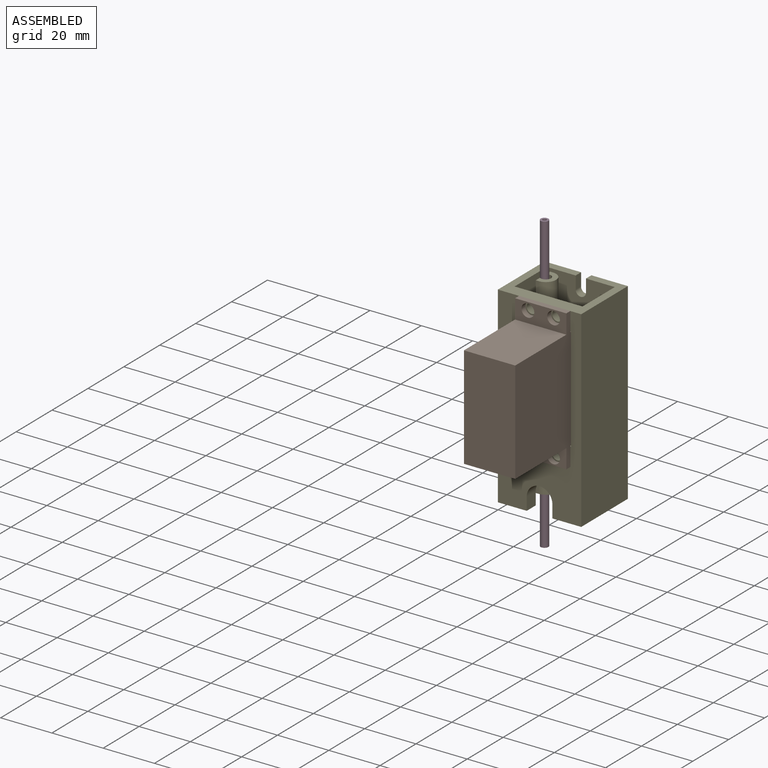
[diagram: assembled view]
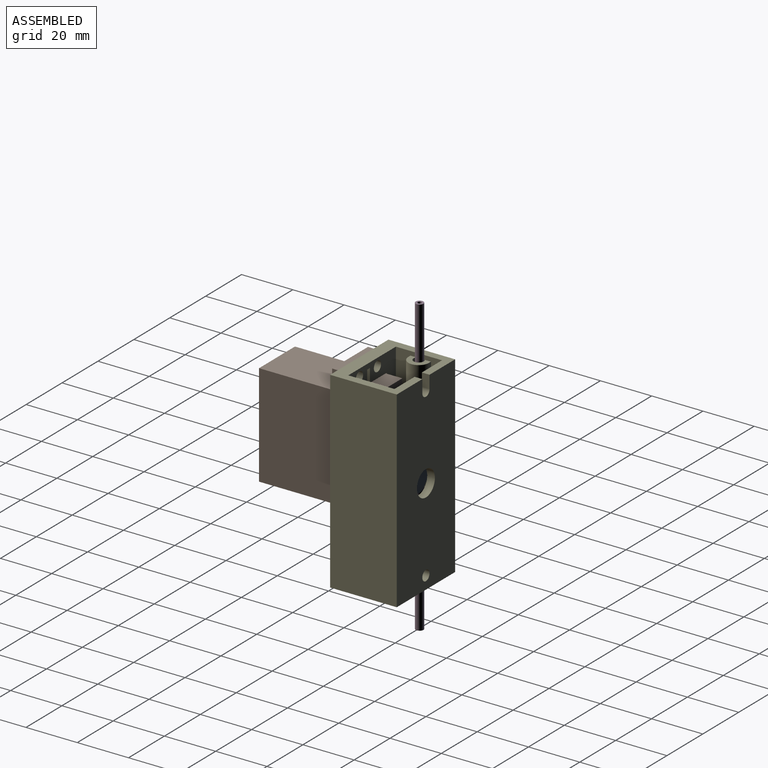
[diagram: assembled view, second angle]
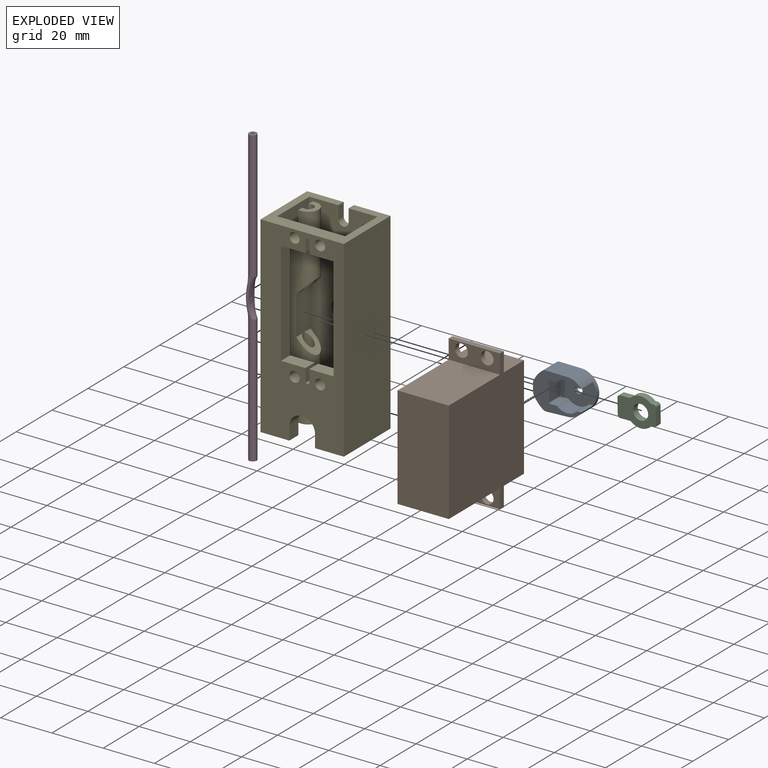
[diagram: exploded view]
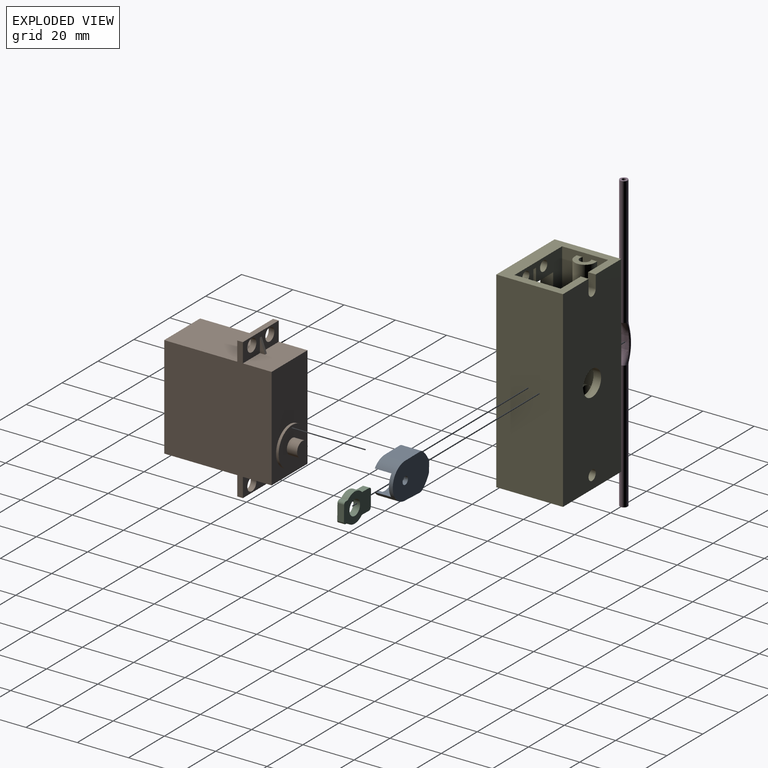
[diagram: exploded view, second angle]
FCSTD DOCUMENT  (FreeCAD 1.1R20260414 (Git shallow))
Label: ValveAssembly
Comment: Source: ServoQuetsch https://gitlab.com/mikeventor1/ServoQuetsch (CERN-OHL-P-2.0). Multi-file bundle: parts driven by VarSet in V.FCStd.
License: CERN Open Hardware Licence Version 2 - Permissive
LicenseURL: https://ohwr.org/cernohl
objects: App::Link×5, App::FeaturePython×5, TechDraw::DrawViewAnnotation×3, TechDraw::DrawProjGroupItem×3, TechDraw::DrawViewDimension×3, TechDraw::DrawViewBalloon×3, App::Point×1, Assembly::JointGroup×1, Assembly::AssemblyObject×1, TechDraw::DrawSVGTemplate×1, TechDraw::DrawProjGroup×1, TechDraw::DrawPage×1
note: 6 computed .brp shape members not serialized (recipe doc carries the construction recipe); baked Part::Feature solids carry a one-line shape summary decoded from their .brp
EXTERNAL_REF file=ValveBody.FCStd obj=Body
EXTERNAL_REF file=Servo.FCStd obj=Body
EXTERNAL_REF file=ServoConnector.FCStd obj=Body
EXTERNAL_REF file=Pincher.FCStd obj=Body
EXTERNAL_REF file=V.FCStd obj=VarSet
EXTERNAL_REF file=Tube.FCStd obj=Body

FEATURE [App::Point] Origin001  label="Ursprung"
  Role = Origin
FEATURE [App::Link] ValveBody
  LinkedObject = -> <external ValveBody.FCStd>#Body
FEATURE [App::FeaturePython] GroundedJoint  # Assembly grounded joint (typed FeaturePython)
  ObjectToGround = -> ValveBody
FEATURE [App::Link] Servo
  LinkPlacement = pos=(2,-44.7,47.5) rot=(1,0,0;4.71239rad)
  LinkedObject = -> <external Servo.FCStd>#Body
  Placement = pos=(2,-44.7,47.5) rot=(1,0,0;4.71239rad)
FEATURE [App::Link] ServoConnector
  LinkPlacement = pos=(2,1.6,37.735) rot=(0.584822,-0.573578,-0.573578;4.19996rad)
  LinkedObject = -> <external ServoConnector.FCStd>#Body
  Placement = pos=(2,1.6,37.735) rot=(0.584822,-0.573578,-0.573578;4.19996rad)
FEATURE [App::Link] Pincher001
  LinkPlacement = pos=(-10.7476,5.7,37.4875) rot=(-0.999906,0.009706,-0.009706;4.7123rad)
  LinkedObject = -> <external Pincher.FCStd>#Body
  Placement = pos=(-10.7476,5.7,37.4875) rot=(-0.999906,0.009706,-0.009706;4.7123rad)
FEATURE [App::FeaturePython] Joint001  label="Drehverbindung004"  # Assembly joint (typed FeaturePython)
  Angle = 0
  AngleMax = 0
  AngleMin = 0
  Detach1 = false
  Detach2 = false
  Distance = 0
  Distance2 = 0
  EnableAngleMax = false
  EnableAngleMin = false
  EnableLengthMax = false
  EnableLengthMin = false
  JointType = 1 (Revolute)
  LengthMax = 0
  LengthMin = 0
  Offset2 = pos=(0,0,2) rot=(0,0,1;0rad)
  Placement1 = pos=(0,7.1e-15,2.6) rot=(-1,0,0;3.14159rad)
  Placement2 = pos=(0,9.765,48.9) rot=(0,0,1;0rad)
  Reference1 = -> ServoConnector [Edge23,Edge23]
  Reference2 = -> Servo [Edge76,Edge76]
  Suppressed = false
FEATURE [App::FeaturePython] Joint002  label="StarrerVerbund004"  # Assembly joint (typed FeaturePython)
  Angle = 0
  AngleMax = 0
  AngleMin = 0
  Detach1 = false
  Detach2 = false
  Distance = 0
  Distance2 = 0
  EnableAngleMax = false
  EnableAngleMin = false
  EnableLengthMax = false
  EnableLengthMin = false
  JointType = 0 (Fixed)
  LengthMax = 0
  LengthMin = 0
  Offset2 = pos=(0,0,0) rot=(0,0,1;1.5708rad)
  Placement1 = pos=(12.75,0,1.5) rot=(-1,0,0;3.14159rad)
  Placement2 = pos=(0,7.1e-15,2.6) rot=(-0.707107,0.707107,0;3.14159rad)
  Reference1 = -> Pincher001 [Edge52,Edge52]
  Reference2 = -> ServoConnector [Edge39,Edge39]
  Suppressed = false
FEATURE [App::FeaturePython] Joint  label="StarrerVerbund008"  # Assembly joint (typed FeaturePython)
  Angle = 0
  AngleMax = 0
  AngleMin = 0
  Detach1 = false
  Detach2 = false
  Distance = 0
  Distance2 = 0
  EnableAngleMax = false
  EnableAngleMin = false
  EnableLengthMax = false
  EnableLengthMin = false
  JointType = 0 (Fixed)
  LengthMax = 0
  LengthMin = 0
  Offset2 = pos=(0.25,0,0) rot=(0,0,-1;1.5708rad)
  Placement1 = pos=(-10,0,30.7) rot=(-0.57735,-0.57735,0.57735;4.18879rad)
  Placement2 = pos=(-8,-14,47.5) rot=(0,0,-1;1.5708rad)
  Reference1 = -> Servo [Edge22,Edge22]
  Reference2 = -> ValveBody [Edge6,Edge6]
  Suppressed = false
  expr: .Offset2.Base.x = <<V>>#<<VarSet>>.ServoClearance / 2
FEATURE [App::Link] Tube
  LinkPlacement = pos=(-9.75,2.7,37.5) rot=(0,0.707107,0.707107;3.14159rad)
  LinkedObject = -> <external Tube.FCStd>#Body
  Placement = pos=(-9.75,2.7,37.5) rot=(0,0.707107,0.707107;3.14159rad)
FEATURE [App::FeaturePython] Joint003  label="Fixed004"  # Assembly joint (typed FeaturePython)
  Angle = 0
  AngleMax = 0
  AngleMin = 0
  Detach1 = false
  Detach2 = false
  Distance = 0
  Distance2 = 0
  EnableAngleMax = false
  EnableAngleMin = false
  EnableLengthMax = false
  EnableLengthMin = false
  JointType = 0 (Fixed)
  LengthMax = 0
  LengthMin = 0
  Offset1 = pos=(1.5,0,0) rot=(0,0,1;0rad)
  Offset2 = pos=(0,0,0) rot=(0,0,1;3.14159rad)
  Placement1 = pos=(1.5,7.5,-4.9e-15) rot=(1,0,0;1.5708rad)
  Placement2 = pos=(-11.25,2.7,45) rot=(0,0,1;3.14159rad)
  Reference1 = -> Tube [Edge20,Edge20]
  Reference2 = -> ValveBody [Edge205,Vertex139]
  Suppressed = false
  expr: .Offset1.Base.x = <<V>>#<<VarSet>>.TubeOD / 2
FEATURE [Assembly::JointGroup] Joints
  Group = -> [GroundedJoint,Joint001,Joint002,Joint,Joint003]
FEATURE [Assembly::AssemblyObject] Assembly
  Group = -> [Joints,ValveBody,GroundedJoint,Servo,ServoConnector,Pincher001,Joint001,Joint002,Joint,Tube,Joint003]
  Origin = -> Origin
  Type = Assembly
FEATURE [TechDraw::DrawSVGTemplate] Template
  EditableTexts = approval_person=Mike; creator=Mike; date_of_issue=10.06.26; drawing_number=DN; language_code=EN; part_material=PETG; revision_index=AAA; scale=1 : 1; sheet_number=1 / 1; title=ValveAssembly
  Height = 210
  Orientation = 1
  Template = <path>
  Width = 297
FEATURE [TechDraw::DrawViewAnnotation] Annotation
  Font = osifont
  LineSpace = 100
  LockPosition = false
  MaxWidth = -1
  Rotation = 0
  ScaleType = 0
  Text = BOM: | 1 Servo 25 Kg DC4.8~7V  |     e.g. TD-8125MG     ~12€ | 2 ValveBody | 3 Pincher
  TextSize = 5
  TextStyle = 0
  X = 236.287
  Y = 88.5631
FEATURE [TechDraw::DrawViewAnnotation] Annotation002
  Font = osifont
  LineSpace = 100
  LockPosition = false
  MaxWidth = -1
  Rotation = 0
  ScaleType = 0
  Text = ~1€
  TextSize = 5
  TextStyle = 0
  X = 254.1
  Y = 72.8304
FEATURE [TechDraw::DrawProjGroupItem] View  label="Front"
  CoarseView = false
  Direction = (0,-1,0)
  Focus = 100
  HardHidden = true
  IsoCount = 0
  IsoHidden = false
  IsoVisible = false
  LockPosition = true
  Perspective = false
  Rotation = 0
  RotationVector = (1,0,0)
  ScaleType = 2
  ScrubCount = 0
  SeamHidden = false
  SeamVisible = true
  SmoothHidden = false
  SmoothVisible = true
  Source = -> [Assembly]
  Type = 0
  X = 0
  XDirection = (1e-16,0,1)
  Y = 0
FEATURE [TechDraw::DrawProjGroupItem] ProjItem  label="Right"
  CoarseView = false
  Direction = (1e-16,-1e-16,1)
  Focus = 100
  HardHidden = true
  IsoCount = 0
  IsoHidden = false
  IsoVisible = false
  LockPosition = true
  Perspective = false
  Rotation = 0
  RotationVector = (1,0,0)
  ScaleType = 0
  ScrubCount = 0
  SeamHidden = false
  SeamVisible = true
  SmoothHidden = false
  SmoothVisible = true
  Source = -> [Assembly]
  Type = 2
  X = -121.088
  XDirection = (0,1,1e-16)
  Y = 0
FEATURE [TechDraw::DrawProjGroup] ProjGroup
  Anchor = -> View
  AutoDistribute = true
  LockPosition = false
  ProjectionType = 0
  Rotation = 0
  ScaleType = 0
  Source = -> [Assembly]
  Views = -> [View,ProjItem]
  X = 201.697
  Y = 148.763
  spacingX = 15
  spacingY = 15
FEATURE [TechDraw::DrawProjGroupItem] View001
  CoarseView = false
  Direction = (0.131616,-0.129876,-0.982756)
  Focus = 100
  HardHidden = false
  IsoCount = 0
  IsoHidden = false
  IsoVisible = false
  LockPosition = false
  Perspective = false
  Rotation = 0
  RotationVector = (1,0,0)
  ScaleType = 0
  ScrubCount = 0
  SeamHidden = false
  SeamVisible = true
  SmoothHidden = false
  SmoothVisible = true
  Source = -> [Assembly]
  Type = 0
  X = 67.2636
  XDirection = (0.957469,-0.240133,0.159964)
  Y = 60.1996
FEATURE [TechDraw::DrawViewAnnotation] Annotation001
  Font = osifont
  LineSpace = 100
  LockPosition = false
  MaxWidth = -1
  Owner = -> Annotation
  Rotation = 0
  ScaleType = 0
  Text = }
  TextSize = 15
  TextStyle = 0
  X = 4.17223
  Y = -15.358
FEATURE [TechDraw::DrawViewDimension] Dimension
  AngleOverride = false
  Arbitrary = true
  ArbitraryTolerances = false
  BoxCorners = (2) [(-57.5,-16.25,-1e-07),(57.5,16.25,1e-07)]
  EqualTolerance = true
  ExtensionAngle = 0
  FormatSpec = 75 mm
  FormatSpecOverTolerance = %+.2w
  FormatSpecUnderTolerance = %+.2w
  Inverted = false
  LineAngle = 0
  LockPosition = false
  MeasureType = 1
  OverTolerance = 0
  References2D = -> [View]
  Rotation = 0
  ScaleType = 0
  ShowUnits = false
  TheoreticalExact = false
  Type = 1
  UnderTolerance = 0
  UseActualArea = true
  X = 0
  Y = 29.791
FEATURE [TechDraw::DrawViewDimension] Dimension001
  AngleOverride = false
  Arbitrary = true
  ArbitraryTolerances = false
  BoxCorners = (2) [(-28.35,-16.25,-1e-07),(28.35,16.25,1e-07)]
  EqualTolerance = true
  ExtensionAngle = 0
  FormatSpec = 56.7 mm
  FormatSpecOverTolerance = %+.2w
  FormatSpecUnderTolerance = %+.2w
  Inverted = false
  LineAngle = 0
  LockPosition = false
  MeasureType = 1
  OverTolerance = 0
  References2D = -> [ProjItem]
  Rotation = 0
  ScaleType = 0
  ShowUnits = false
  TheoreticalExact = false
  Type = 1
  UnderTolerance = 0
  UseActualArea = true
  X = 0
  Y = 29.0805
FEATURE [TechDraw::DrawViewDimension] Dimension002
  AngleOverride = false
  Arbitrary = true
  ArbitraryTolerances = false
  BoxCorners = (2) [(-28.35,-16.25,-1e-07),(28.35,16.25,1e-07)]
  EqualTolerance = true
  ExtensionAngle = 0
  FormatSpec = 32.5 mm
  FormatSpecOverTolerance = %+.2w
  FormatSpecUnderTolerance = %+.2w
  Inverted = false
  LineAngle = 0
  LockPosition = false
  MeasureType = 1
  OverTolerance = 0
  References2D = -> [ProjItem]
  Rotation = 0
  ScaleType = 0
  ShowUnits = false
  TheoreticalExact = false
  Type = 2
  UnderTolerance = 0
  UseActualArea = true
  X = 40.2236
  Y = 0
FEATURE [TechDraw::DrawViewBalloon] Balloon
  BubbleShape = 0
  EndType = 0
  EndTypeScale = 1
  KinkLength = 5
  LockPosition = false
  OriginX = -14.1
  OriginY = -12
  Rotation = 0
  ScaleType = 0
  ShapeScale = 1
  SourceView = -> ProjItem
  Text = 1
  TextWrapLen = -1
  X = -8.49766
  Y = -39.1975
FEATURE [TechDraw::DrawViewBalloon] Balloon001
  BubbleShape = 0
  EndType = 0
  EndTypeScale = 1
  KinkLength = 5
  LockPosition = false
  OriginX = 12.5426
  OriginY = -16.0642
  Rotation = 0
  ScaleType = 0
  ShapeScale = 1
  SourceView = -> Balloon
  Text = 2
  TextWrapLen = -1
  X = 19.9598
  Y = -39.1027
FEATURE [TechDraw::DrawViewBalloon] Balloon002
  BubbleShape = 0
  EndType = 0
  EndTypeScale = 1
  KinkLength = 5
  LockPosition = false
  OriginX = 22.05
  OriginY = 5.12366
  Rotation = 0
  ScaleType = 0
  ShapeScale = 1
  SourceView = -> ProjItem
  Text = 3
  TextWrapLen = -1
  X = 48.8291
  Y = -39.1363
FEATURE [TechDraw::DrawPage] Page
  KeepUpdated = true
  NextBalloonIndex = 7
  ProjectionType = 0
  Template = -> Template
  Views = -> [Annotation,Annotation001,Annotation002,ProjGroup,View001,Dimension,Dimension001,Dimension002,Balloon,Balloon001,Balloon002]
note: 1 file-system path scrubbed to <path> (originals preserved in the JSON sidecar)

RESOLVED EXTERNAL PARTS (link-assembly join: the EXTERNAL_REF files above that resolve inside this repo's crawl, each included once):
---- part Pincher.FCStd = doc fcstd_8b7159f7c5c5 ----
FCSTD DOCUMENT  (FreeCAD 1.1R20260414 (Git shallow))
Label: Pincher
Comment: Source: ServoQuetsch https://gitlab.com/mikeventor1/ServoQuetsch (CERN-OHL-P-2.0). Multi-file bundle: parts driven by VarSet in V.FCStd.
License: CERN Open Hardware Licence Version 2 - Permissive
LicenseURL: https://ohwr.org/cernohl
objects: Sketcher::SketchObject×3, PartDesign::Mirrored×2, PartDesign::Pocket×2, App::Point×1, PartDesign::Pad×1, PartDesign::Fillet×1, PartDesign::Body×1
note: 23 computed .brp shape members not serialized (recipe doc carries the construction recipe); baked Part::Feature solids carry a one-line shape summary decoded from their .brp
EXTERNAL_REF file=V.FCStd obj=VarSet

FEATURE [App::Point] Origin001  label="Ursprung"
  Role = Origin
FEATURE [Sketcher::SketchObject] Sketch004  label="Pincher"
  ArcFitTolerance = 1e-06
  AttachmentSupport = -> [Origin]
  ExternalTypes = [0,0]
  FullyConstrained = true
  MakeInternals = false
  MapMode = 5
  _ExternalGeoVersion = 1
  expr: .Constraints.PinchStartAngle = <<V>>#<<VarSet>>.PinchStartAngle
  expr: Constraints[3] = <<V>>#<<VarSet>>.PinchEndL
  expr: Constraints[4] = <<V>>#<<VarSet>>.PinchStartL
  expr: Constraints[6] = <<V>>#<<VarSet>>.PinchStartAngle / 2
  expr: Constraints[7] = (<<V>>#<<VarSet>>.PinchEndL + <<V>>#<<VarSet>>.PinchStartL) / 2
  sketch-geometry (16):
    g0: GeomPoint X=13.25 Y=-2 Z=0
    g1: LineSegment [constr] StartX=13.25 StartY=-2 StartZ=0 EndX=0 EndY=-2 EndZ=0
    g2: LineSegment [constr] StartX=13.25 StartY=-2 StartZ=0 EndX=4.37324 EndY=-7.125 EndZ=0
    g3: LineSegment [constr] StartX=13.25 StartY=-2 StartZ=0 EndX=1.90037 EndY=-5.04112 EndZ=0
    g4: ArcOfCircle CenterX=11.1148 CenterY=2.83301 CenterZ=0 NormalX=0 NormalY=0 NormalZ=1 AngleXU=0 Radius=12.1205 StartAngle=3.59119 EndAngle=4.06202
    g5: LineSegment StartX=0 StartY=0 StartZ=0 EndX=0 EndY=-1.5654 EndZ=0
    g6: ArcOfCircle CenterX=2 CenterY=-1.5654 CenterZ=0 NormalX=0 NormalY=0 NormalZ=1 AngleXU=0 Radius=2 StartAngle=3.14159 EndAngle=3.59119
    g7: LineSegment [constr] StartX=0 StartY=-1.5654 StartZ=0 EndX=0.198755 EndY=-2.4346 EndZ=0
    g8: LineSegment [constr] StartX=0 StartY=0 StartZ=0 EndX=13.25 EndY=0 EndZ=0
    g9: ArcOfCircle CenterX=13.25 CenterY=0 CenterZ=0 NormalX=0 NormalY=0 NormalZ=1 AngleXU=0 Radius=7 StartAngle=4.73897 EndAngle=6.28319
    g10: LineSegment StartX=0 StartY=0 StartZ=0 EndX=20.25 EndY=0 EndZ=0
    g11: LineSegment StartX=5.04013 StartY=-7.22079 StartZ=0 EndX=13.4361 EndY=-6.99753 EndZ=0
    g12: ArcOfCircle CenterX=4.98696 CenterY=-5.22149 CenterZ=0 NormalX=0 NormalY=0 NormalZ=1 AngleXU=0 Radius=2 StartAngle=4.06202 EndAngle=4.73897
    g13: LineSegment [constr] StartX=2 StartY=-1.5654 StartZ=0 EndX=0.0993777 EndY=-2 EndZ=0
    g14: LineSegment [constr] StartX=3.776 StartY=-6.81321 StartZ=0 EndX=4.37324 EndY=-7.125 EndZ=0
    g15: LineSegment [constr] StartX=4.37324 StartY=-7.125 StartZ=0 EndX=5.04013 EndY=-7.22079 EndZ=0
  constraints (40):
    c: Coincident(g1,g0)
    c: Coincident(g2,g0)
    c: Angle(g1,g2) = 0.523599  'PinchStartAngle'
    c: DistanceX(g1,g1) = 13.25
    c: Distance(g2,g2) = 10.25
    c: Coincident(g3,g0)
    c: Angle(g1,g3) = 0.261799
    c: Distance(g3,g3) = 11.75
    c: PointOnObject(g3,g4)
    c: Coincident(g5,g-1)
    c: PointOnObject(g1,g-2)
    c: DistanceY(g1,g5) = 2
    c: Tangent(g5,g6) = -1.5708
    c: Tangent(g4,g6) = -1.5708
    c: Radius(g6) = 2
    c: Vertical(g5)
    c: Coincident(g7,g5)
    c: Coincident(g7,g4)
    c: Coincident(g8,g5)
    c: PointOnObject(g8,g-1)
    c: Equal(g8,g1)
    c: Coincident(g9,g8)
    c: PointOnObject(g9,g-1)
    c: Coincident(g10,g5)
    c: Coincident(g10,g9)
    c: Radius(g9) = 7
    c: Tangent(g11,g9) = -1.5708
    c: Tangent(g11,g12) = -1.5708
    c: Tangent(g4,g12) = -1.5708
    c: Radius(g12) = 2
    c: Coincident(g13,g6)
    c: Symmetric(g7,g7,g13)
    c: PointOnObject(g13,g1)
    c: PointOnObject(g2,g12)
    c: Horizontal(g1)
    c: Coincident(g14,g4)
    c: Coincident(g14,g2)
    c: Coincident(g15,g2)
    c: Coincident(g15,g11)
    c: Equal(g15,g14)
FEATURE [PartDesign::Pad] Pad
  Direction = (0,0,1)
  Length = 8
  Length2 = 10
  Profile = -> Sketch004
  ReferenceAxis = -> Sketch004 [N_Axis]
  SideType = 0
  Suppressed = false
  Type = 0
  Type2 = 0
  expr: Length = <<V>>#<<VarSet>>.PincherH
FEATURE [PartDesign::Mirrored] Mirrored
  BaseFeature = -> Pad
  MirrorPlane = -> Sketch004 [H_Axis]
  Originals = -> [Pad]
  Suppressed = false
  TransformMode = 0
FEATURE [Sketcher::SketchObject] Sketch
  ArcFitTolerance = 1e-06
  AttachmentSupport = -> [Origin]
  ExternalGeometry = -> [Mirrored]
  ExternalTypes = [0]
  FullyConstrained = true
  MakeInternals = false
  MapMode = 5
  _ExternalGeoVersion = 1
  sketch-geometry (1):
    g0: Circle CenterX=13.25 CenterY=0 CenterZ=0 NormalX=0 NormalY=0 NormalZ=1 AngleXU=0 Radius=1.5
  constraints (2):
    c: Coincident(g0,g-3)
    c: Diameter(g0) = 3
FEATURE [Sketcher::SketchObject] Sketch005  label="ServoConnect"
  ArcFitTolerance = 1e-06
  AttachmentSupport = -> [Mirrored]
  ExternalGeometry = -> [Mirrored]
  ExternalTypes = [0]
  FullyConstrained = true
  MakeInternals = false
  MapMode = 5
  Placement = pos=(0,0,8) rot=(0,0,1;0rad)
  _ExternalGeoVersion = 1
  expr: Constraints[10] = 4 + <<V>>#<<VarSet>>.ServoConnectOffset
  expr: Constraints[15] = 5.65 + <<V>>#<<VarSet>>.ServoConnectOffset
  sketch-geometry (6):
    g0: LineSegment StartX=17.2917 StartY=-4.125 StartZ=0 EndX=20.2917 EndY=-4.125 EndZ=0
    g1: LineSegment StartX=20.2917 StartY=-4.125 StartZ=0 EndX=20.2917 EndY=0 EndZ=0
    g2: LineSegment StartX=9.20834 StartY=-4.125 StartZ=0 EndX=6.20834 EndY=-4.125 EndZ=0
    g3: LineSegment StartX=6.20834 StartY=-4.125 StartZ=0 EndX=6.20834 EndY=0 EndZ=0
    g4: LineSegment StartX=20.2917 StartY=0 StartZ=0 EndX=6.20834 EndY=0 EndZ=0
    g5: ArcOfCircle CenterX=13.25 CenterY=0 CenterZ=0 NormalX=0 NormalY=0 NormalZ=1 AngleXU=0 Radius=5.775 StartAngle=3.9372 EndAngle=5.48758
  constraints (17):
    c: Coincident(g1,g0)
    c: Coincident(g3,g2)
    c: Equal(g2,g0)
    c: Coincident(g4,g1)
    c: Coincident(g4,g3)
    c: Perpendicular(g2,g3)
    c: Perpendicular(g1,g0)
    c: Perpendicular(g4,g1)
    c: Perpendicular(g3,g4)
    c: Distance(g0,g0) = 3
    c: Distance(g1,g1) = 4.125
    c: Horizontal(g4)
    c: Symmetric(g4,g4,g5)
    c: Coincident(g5,g2)
    c: Coincident(g5,g0)
    c: Radius(g5) = 5.775
    c: Coincident(g5,g-3)
FEATURE [PartDesign::Pocket] Pocket
  BaseFeature = -> Mirrored
  Direction = (0,0,-1)
  Length = 6.5
  Length2 = 5
  Profile = -> Sketch005
  ReferenceAxis = -> Sketch005 [N_Axis]
  SideType = 0
  Suppressed = false
  Type = 0
  Type2 = 0
  expr: Length = <<V>>#<<VarSet>>.PincherH - <<V>>#<<VarSet>>.PinchBottomT
FEATURE [PartDesign::Mirrored] Mirrored001
  BaseFeature = -> Pocket
  MirrorPlane = -> Sketch005 [H_Axis]
  Originals = -> [Pocket]
  Suppressed = false
  TransformMode = 0
FEATURE [PartDesign::Pocket] Pocket001
  BaseFeature = -> Mirrored001
  Direction = (0,0,-1)
  Length = 5
  Length2 = 5
  Profile = -> Sketch
  ReferenceAxis = -> Sketch [N_Axis]
  Reversed = true
  SideType = 0
  Suppressed = false
  Type = 1
  Type2 = 0
FEATURE [PartDesign::Fillet] Fillet
  Base = -> Pocket001 [Edge65,Edge52]
  BaseFeature = -> Pocket001
  Radius = 0.5
  SupportTransform = false
  Suppressed = false
  UseAllEdges = false
FEATURE [PartDesign::Body] Body  label="Pincher001"
  AllowCompound = false
  Group = -> [Sketch004,Pad,Mirrored,Sketch,Sketch005,Pocket,Mirrored001,Pocket001,Fillet]
  Origin = -> Origin
  Tip = -> Fillet
---- part Servo.FCStd = doc fcstd_5e8fa54a2fea ----
FCSTD DOCUMENT  (FreeCAD 1.1R20260414 (Git shallow))
Label: Servo
Comment: Source: ServoQuetsch https://gitlab.com/mikeventor1/ServoQuetsch (CERN-OHL-P-2.0). Multi-file bundle: parts driven by VarSet in V.FCStd.
License: CERN Open Hardware Licence Version 2 - Permissive
LicenseURL: https://ohwr.org/cernohl
objects: Sketcher::SketchObject×7, PartDesign::Pad×6, PartDesign::Mirrored×2, App::Point×1, PartDesign::Pocket×1, PartDesign::Body×1
note: 40 computed .brp shape members not serialized (recipe doc carries the construction recipe); baked Part::Feature solids carry a one-line shape summary decoded from their .brp
EXTERNAL_REF file=V.FCStd obj=VarSet

FEATURE [App::Point] Origin001  label="Ursprung"
  Role = Origin
FEATURE [Sketcher::SketchObject] Sketch
  ArcFitTolerance = 1e-06
  AttachmentSupport = -> [Origin]
  ExternalTypes = [0]
  FullyConstrained = true
  MakeInternals = false
  MapMode = 5
  _ExternalGeoVersion = 1
  expr: Constraints[10] = <<V>>#<<VarSet>>.ServoW
  expr: Constraints[11] = <<V>>#<<VarSet>>.ServoInnerH
  sketch-geometry (5):
    g0: LineSegment StartX=-10 StartY=-20 StartZ=0 EndX=10 EndY=-20 EndZ=0
    g1: LineSegment StartX=10 StartY=-20 StartZ=0 EndX=10 EndY=20 EndZ=0
    g2: LineSegment StartX=10 StartY=20 StartZ=0 EndX=-10 EndY=20 EndZ=0
    g3: LineSegment StartX=-10 StartY=20 StartZ=0 EndX=-10 EndY=-20 EndZ=0
    g4: GeomPoint [constr] X=0 Y=0 Z=0
  constraints (12):
    c: Coincident(g0,g1)
    c: Coincident(g1,g2)
    c: Coincident(g2,g3)
    c: Coincident(g3,g0)
    c: Horizontal(g0)
    c: Horizontal(g2)
    c: Vertical(g1)
    c: Vertical(g3)
    c: Symmetric(g2,g0,g4)
    c: Coincident(g4,g-1)
    c: DistanceX(g2,g2) = 20
    c: DistanceY(g3,g3) = 40
FEATURE [PartDesign::Pad] Pad
  Direction = (0,0,1)
  Length = 28.5
  Length2 = 10
  Profile = -> Sketch
  ReferenceAxis = -> Sketch [N_Axis]
  SideType = 0
  Suppressed = false
  Type = 0
  Type2 = 0
FEATURE [Sketcher::SketchObject] Sketch001
  ArcFitTolerance = 1e-06
  AttachmentSupport = -> [Pad]
  ExternalGeometry = -> [Pad]
  ExternalTypes = [0]
  FullyConstrained = true
  MakeInternals = false
  MapMode = 5
  Placement = pos=(0,0,28.5) rot=(0,0,1;0rad)
  _ExternalGeoVersion = 1
  expr: Constraints[11] = <<V>>#<<VarSet>>.ServoH
  sketch-geometry (5):
    g0: LineSegment StartX=-10 StartY=-27.5 StartZ=0 EndX=10 EndY=-27.5 EndZ=0
    g1: LineSegment StartX=10 StartY=-27.5 StartZ=0 EndX=10 EndY=27.5 EndZ=0
    g2: LineSegment StartX=10 StartY=27.5 StartZ=0 EndX=-10 EndY=27.5 EndZ=0
    g3: LineSegment StartX=-10 StartY=27.5 StartZ=0 EndX=-10 EndY=-27.5 EndZ=0
    g4: GeomPoint [constr] X=0 Y=0 Z=0
  constraints (12):
    c: Coincident(g0,g1)
    c: Coincident(g1,g2)
    c: Coincident(g2,g3)
    c: Coincident(g3,g0)
    c: Horizontal(g0)
    c: Horizontal(g2)
    c: Vertical(g1)
    c: Vertical(g3)
    c: Symmetric(g2,g0,g4)
    c: Coincident(g4,g-1)
    c: Vertical(g2,g-3)
    c: DistanceY(g3,g3) = 55
FEATURE [PartDesign::Pad] Pad001
  BaseFeature = -> Pad
  Direction = (0,0,1)
  Length = 2.2
  Length2 = 10
  Profile = -> Sketch001
  ReferenceAxis = -> Sketch001 [N_Axis]
  SideType = 0
  Suppressed = false
  Type = 0
  Type2 = 0
FEATURE [Sketcher::SketchObject] Sketch002
  ArcFitTolerance = 1e-06
  AttachmentSupport = -> [Pad001]
  ExternalGeometry = -> [Pad001]
  ExternalTypes = [0]
  FullyConstrained = true
  MakeInternals = false
  MapMode = 5
  Placement = pos=(0,0,30.7) rot=(0,0,1;0rad)
  _ExternalGeoVersion = 1
  sketch-geometry (5):
    g0: LineSegment StartX=10 StartY=-20 StartZ=0 EndX=10 EndY=20 EndZ=0
    g1: LineSegment StartX=10 StartY=20 StartZ=0 EndX=-10 EndY=20 EndZ=0
    g2: LineSegment StartX=-10 StartY=20 StartZ=0 EndX=-10 EndY=-20 EndZ=0
    g3: LineSegment StartX=-10 StartY=-20 StartZ=0 EndX=10 EndY=-20 EndZ=0
    g4: GeomPoint [constr] X=0 Y=0 Z=0
  constraints (11):
    c: Coincident(g0,g1)
    c: Coincident(g1,g2)
    c: Coincident(g2,g3)
    c: Coincident(g3,g0)
    c: Vertical(g0)
    c: Vertical(g2)
    c: Horizontal(g1)
    c: Horizontal(g3)
    c: Symmetric(g2,g0,g4)
    c: Coincident(g4,g-1)
    c: Coincident(g1,g-3)
FEATURE [PartDesign::Pad] Pad002
  BaseFeature = -> Pad001
  Direction = (0,0,1)
  Length = 11.2
  Length2 = 10
  Profile = -> Sketch002
  ReferenceAxis = -> Sketch002 [N_Axis]
  SideType = 0
  Suppressed = false
  Type = 0
  Type2 = 0
FEATURE [Sketcher::SketchObject] Sketch003
  ArcFitTolerance = 1e-06
  AttachmentSupport = -> [Pad002]
  ExternalGeometry = -> [Pad002]
  ExternalTypes = [0]
  FullyConstrained = true
  MakeInternals = false
  MapMode = 5
  Placement = pos=(0,0,41.9) rot=(0,0,1;0rad)
  _ExternalGeoVersion = 1
  sketch-geometry (1):
    g0: Circle CenterX=0 CenterY=9.765 CenterZ=0 NormalX=0 NormalY=0 NormalZ=1 AngleXU=0 Radius=2.915
  constraints (3):
    c: PointOnObject(g0,g-2)
    c: Distance(g0,g-3) = 7.32
    c: Diameter(g0) = 5.83
FEATURE [PartDesign::Pad] Pad003
  BaseFeature = -> Pad002
  Direction = (0,0,1)
  Length = 5
  Length2 = 10
  Profile = -> Sketch003
  ReferenceAxis = -> Sketch003 [N_Axis]
  SideType = 0
  Suppressed = false
  Type = 0
  Type2 = 0
FEATURE [Sketcher::SketchObject] Sketch004
  ArcFitTolerance = 1e-06
  AttachmentSupport = -> [Pad003]
  ExternalGeometry = -> [Pad003]
  ExternalTypes = [0]
  FullyConstrained = true
  MakeInternals = false
  MapMode = 5
  Placement = pos=(0,0,41.9) rot=(0,0,1;0rad)
  _ExternalGeoVersion = 1
  sketch-geometry (1):
    g0: Circle CenterX=0 CenterY=9.765 CenterZ=0 NormalX=0 NormalY=0 NormalZ=1 AngleXU=0 Radius=7.5
  constraints (2):
    c: Diameter(g0) = 15
    c: Coincident(g0,g-3)
FEATURE [PartDesign::Pad] Pad004
  BaseFeature = -> Pad003
  Direction = (0,0,1)
  Length = 1
  Length2 = 10
  Profile = -> Sketch004
  ReferenceAxis = -> Sketch004 [N_Axis]
  SideType = 0
  Suppressed = false
  Type = 0
  Type2 = 0
FEATURE [Sketcher::SketchObject] Sketch005
  ArcFitTolerance = 1e-06
  AttachmentSupport = -> [Origin]
  ExternalGeometry = -> [Pad004]
  ExternalTypes = [0,0]
  FullyConstrained = true
  MakeInternals = false
  MapMode = 5
  Placement = pos=(0,0,0) rot=(0.57735,0.57735,0.57735;2.0944rad)
  _ExternalGeoVersion = 1
  sketch-geometry (3):
    g0: LineSegment StartX=20 StartY=32.7 StartZ=0 EndX=25.5 EndY=30.7 EndZ=0
    g1: LineSegment StartX=25.5 StartY=30.7 StartZ=0 EndX=20 EndY=30.7 EndZ=0
    g2: LineSegment StartX=20 StartY=30.7 StartZ=0 EndX=20 EndY=32.7 EndZ=0
  constraints (8):
    c: PointOnObject(g0,g-3)
    c: Coincident(g0,g1)
    c: Coincident(g1,g-3)
    c: Horizontal(g1)
    c: Coincident(g1,g2)
    c: Coincident(g2,g0)
    c: DistanceY(g2,g2) = 2
    c: DistanceX(g0,g-4) = 2
FEATURE [PartDesign::Pad] Pad005
  BaseFeature = -> Pad004
  Direction = (1,0,0)
  Length = 0.5
  Length2 = 0.5
  Profile = -> Sketch005
  ReferenceAxis = -> Sketch005 [N_Axis]
  SideType = 1
  Suppressed = false
  Type = 0
  Type2 = 0
FEATURE [PartDesign::Mirrored] Mirrored
  BaseFeature = -> Pad005
  MirrorPlane = -> Sketch005 [V_Axis]
  Originals = -> [Pad005]
  Suppressed = false
  TransformMode = 0
FEATURE [Sketcher::SketchObject] Sketch006  label="ConnectionHoles"
  ArcFitTolerance = 1e-06
  AttachmentSupport = -> [Origin]
  ExternalGeometry = -> [Mirrored]
  ExternalTypes = [0]
  FullyConstrained = true
  MakeInternals = false
  MapMode = 5
  _ExternalGeoVersion = 1
  sketch-geometry (4):
    g0: Circle CenterX=-5 CenterY=24.5 CenterZ=0 NormalX=0 NormalY=0 NormalZ=1 AngleXU=0 Radius=2.5
    g1: Circle CenterX=5 CenterY=24.5 CenterZ=0 NormalX=0 NormalY=0 NormalZ=1 AngleXU=0 Radius=2.5
    g2: LineSegment [constr] StartX=-10 StartY=20 StartZ=0 EndX=0 EndY=20 EndZ=0
    g3: GeomPoint [constr] X=-5 Y=20 Z=0
  constraints (9):
    c: Diameter(g0) = 5
    c: Equal(g1,g0)
    c: Symmetric(g0,g1,g-2)
    c: Coincident(g2,g-3)
    c: PointOnObject(g2,g-2)
    c: Horizontal(g2)
    c: Symmetric(g2,g2,g3)
    c: Vertical(g0,g3)
    c: DistanceY(g0,g-3) = 3
FEATURE [PartDesign::Pocket] Pocket
  BaseFeature = -> Mirrored
  Direction = (0,0,-1)
  Length = 5
  Length2 = 5
  Profile = -> Sketch006
  ReferenceAxis = -> Sketch006 [N_Axis]
  Reversed = true
  SideType = 0
  Suppressed = false
  Type = 1
  Type2 = 0
FEATURE [PartDesign::Mirrored] Mirrored001
  BaseFeature = -> Pocket
  MirrorPlane = -> XZ_Plane
  Originals = -> [Pocket]
  Suppressed = false
  TransformMode = 0
FEATURE [PartDesign::Body] Body  label="Servo"
  AllowCompound = false
  Group = -> [Sketch,Pad,Sketch001,Pad001,Sketch002,Pad002,Sketch003,Pad003,Sketch004,Pad004,Sketch005,Pad005,Mirrored,Sketch006,Pocket,Mirrored001]
  Origin = -> Origin
  Tip = -> Mirrored001
---- part ServoConnector.FCStd = doc fcstd_c72de90cba54 ----
FCSTD DOCUMENT  (FreeCAD 1.1R20260414 (Git shallow))
Label: ServoConnector
Comment: Source: ServoQuetsch https://gitlab.com/mikeventor1/ServoQuetsch (CERN-OHL-P-2.0). Multi-file bundle: parts driven by VarSet in V.FCStd.
License: CERN Open Hardware Licence Version 2 - Permissive
LicenseURL: https://ohwr.org/cernohl
objects: Sketcher::SketchObject×2, App::Point×1, PartDesign::Pad×1, PartDesign::Mirrored×1, PartDesign::Pocket×1, PartDesign::Fillet×1, PartDesign::Body×1
note: 16 computed .brp shape members not serialized (recipe doc carries the construction recipe); baked Part::Feature solids carry a one-line shape summary decoded from their .brp

FEATURE [App::Point] Origin001  label="Ursprung"
  Role = Origin
FEATURE [Sketcher::SketchObject] Sketch
  ArcFitTolerance = 1e-06
  AttachmentSupport = -> [Origin]
  ExternalTypes = [0]
  FullyConstrained = true
  MakeInternals = false
  MapMode = 5
  _ExternalGeoVersion = 1
  sketch-geometry (6):
    g0: ArcOfCircle CenterX=0 CenterY=0 CenterZ=0 NormalX=0 NormalY=0 NormalZ=1 AngleXU=0 Radius=5.65 StartAngle=5.499 EndAngle=7.06737
    g1: LineSegment StartX=4 StartY=3.9903 StartZ=0 EndX=4 EndY=8.9903 EndZ=0
    g2: LineSegment StartX=4 StartY=8.9903 StartZ=0 EndX=0 EndY=8.9903 EndZ=0
    g3: LineSegment StartX=4 StartY=-3.9903 StartZ=0 EndX=4 EndY=-5.9903 EndZ=0
    g4: LineSegment StartX=4 StartY=-5.9903 StartZ=0 EndX=0 EndY=-5.9903 EndZ=0
    g5: LineSegment StartX=0 StartY=8.9903 StartZ=0 EndX=0 EndY=-5.9903 EndZ=0
  constraints (18):
    c: Coincident(g0,g-1)
    c: Radius(g0) = 5.65
    c: Symmetric(g0,g0,g-1)
    c: Coincident(g1,g0)
    c: Vertical(g1)
    c: DistanceX(g-1,g0) = 4
    c: DistanceY(g1,g1) = 5
    c: Coincident(g2,g1)
    c: PointOnObject(g2,g-2)
    c: Horizontal(g2)
    c: Coincident(g3,g0)
    c: Vertical(g3)
    c: Coincident(g4,g3)
    c: PointOnObject(g4,g-2)
    c: Horizontal(g4)
    c: Coincident(g5,g2)
    c: Coincident(g5,g4)
    c: DistanceY(g3,g3) = 2
FEATURE [PartDesign::Pad] Pad
  Direction = (0,0,1)
  Length = 2.6
  Length2 = 10
  Profile = -> Sketch
  ReferenceAxis = -> Sketch [N_Axis]
  SideType = 0
  Suppressed = false
  Type = 0
  Type2 = 0
FEATURE [PartDesign::Mirrored] Mirrored
  BaseFeature = -> Pad
  MirrorPlane = -> Sketch [V_Axis]
  Originals = -> [Pad]
  Suppressed = false
  TransformMode = 0
FEATURE [Sketcher::SketchObject] Sketch001
  ArcFitTolerance = 1e-06
  AttachmentSupport = -> [Origin]
  ExternalTypes = [0]
  FullyConstrained = true
  MakeInternals = false
  MapMode = 5
  _ExternalGeoVersion = 1
  sketch-geometry (1):
    g0: Circle CenterX=0 CenterY=0 CenterZ=0 NormalX=0 NormalY=0 NormalZ=1 AngleXU=0 Radius=2.94
  constraints (2):
    c: Coincident(g0,g-1)
    c: Diameter(g0) = 5.88
FEATURE [PartDesign::Pocket] Pocket
  BaseFeature = -> Mirrored
  Direction = (0,0,-1)
  Length = 5
  Length2 = 5
  Profile = -> Sketch001
  ReferenceAxis = -> Sketch001 [N_Axis]
  Reversed = true
  SideType = 0
  Suppressed = false
  Type = 1
  Type2 = 0
FEATURE [PartDesign::Fillet] Fillet
  Base = -> Pocket [Edge39,Edge38,Edge5,Edge8]
  BaseFeature = -> Pocket
  Radius = 1
  SupportTransform = false
  Suppressed = false
  UseAllEdges = false
FEATURE [PartDesign::Body] Body  label="ServoConnector"
  AllowCompound = false
  Group = -> [Sketch,Pad,Mirrored,Sketch001,Pocket,Fillet]
  Origin = -> Origin
  Tip = -> Fillet
---- part Tube.FCStd = doc fcstd_8d292ae90a5f ----
FCSTD DOCUMENT  (FreeCAD 1.1R20260414 (Git shallow))
Label: Tube
Comment: Source: ServoQuetsch https://gitlab.com/mikeventor1/ServoQuetsch (CERN-OHL-P-2.0). Multi-file bundle: parts driven by VarSet in V.FCStd.
License: CERN Open Hardware Licence Version 2 - Permissive
LicenseURL: https://ohwr.org/cernohl
objects: Sketcher::SketchObject×5, Part::DatumPlane×2, PartDesign::Pad×2, App::Point×1, PartDesign::AdditiveLoft×1, PartDesign::Body×1
note: 20 computed .brp shape members not serialized (recipe doc carries the construction recipe); baked Part::Feature solids carry a one-line shape summary decoded from their .brp
EXTERNAL_REF file=V.FCStd obj=VarSet

FEATURE [App::Point] Origin001  label="Ursprung"
  Role = Origin
FEATURE [Sketcher::SketchObject] Sketch
  ArcFitTolerance = 1e-06
  AttachmentSupport = -> [Origin]
  ExternalTypes = [0]
  FullyConstrained = true
  MakeInternals = false
  MapMode = 5
  Placement = pos=(0,0,0) rot=(1,0,0;1.5708rad)
  _ExternalGeoVersion = 1
  expr: Constraints[8] = <<V>>#<<VarSet>>.TubeOD / 2
  sketch-geometry (4):
    g0: ArcOfCircle CenterX=1 CenterY=1.5 CenterZ=0 NormalX=0 NormalY=0 NormalZ=1 AngleXU=0 Radius=0.5 StartAngle=-1.95e-14 EndAngle=3.14159
    g1: ArcOfCircle CenterX=1 CenterY=-1.5 CenterZ=0 NormalX=0 NormalY=0 NormalZ=1 AngleXU=0 Radius=0.5 StartAngle=3.14159 EndAngle=6.28319
    g2: LineSegment StartX=1.5 StartY=1.5 StartZ=0 EndX=1.5 EndY=-1.5 EndZ=0
    g3: LineSegment StartX=0.5 StartY=1.5 StartZ=0 EndX=0.5 EndY=-1.5 EndZ=0
  constraints (9):
    c: Tangent(g0,g2) = 1.5708
    c: Tangent(g0,g3) = -1.5708
    c: Tangent(g1,g2) = 1.5708
    c: Tangent(g1,g3) = -1.5708
    c: Equal(g0,g1)
    c: Radius(g0) = 0.5
    c: DistanceY(g1,g0) = 3
    c: Symmetric(g0,g1,g-1)
    c: DistanceX(g-1,g0) = 1.5
FEATURE [Part::DatumPlane] DatumPlane
  AttachmentOffset = pos=(0,0,7.5) rot=(0,0,1;0rad)
  AttachmentSupport = -> [Origin]
  MapMode = 5
  Placement = pos=(0,-7.5,1.7e-15) rot=(1,0,0;1.5708rad)
  expr: .AttachmentOffset.Base.z = <<V>>#<<VarSet>>.CutoutH / 2
FEATURE [Part::DatumPlane] DatumPlane001
  AttachmentOffset = pos=(0,0,-7.5) rot=(0,0,1;0rad)
  AttachmentSupport = -> [Origin]
  MapMode = 5
  Placement = pos=(0,7.5,-1.7e-15) rot=(1,0,0;1.5708rad)
  expr: .AttachmentOffset.Base.z = -<<V>>#<<VarSet>>.CutoutH / 2
FEATURE [Sketcher::SketchObject] Sketch001
  ArcFitTolerance = 1e-06
  AttachmentSupport = -> [DatumPlane]
  ExternalTypes = [0]
  FullyConstrained = true
  MakeInternals = false
  MapMode = 5
  Placement = pos=(0,-7.5,1.7e-15) rot=(1,0,0;1.5708rad)
  _ExternalGeoVersion = 1
  expr: Constraints[1] = <<V>>#<<VarSet>>.TubeOD
  sketch-geometry (1):
    g0: Circle CenterX=0 CenterY=0 CenterZ=0 NormalX=0 NormalY=0 NormalZ=1 AngleXU=0 Radius=1.5
  constraints (2):
    c: Coincident(g0,g-1)
    c: Diameter(g0) = 3
FEATURE [Sketcher::SketchObject] Sketch002
  ArcFitTolerance = 1e-06
  AttachmentSupport = -> [DatumPlane001]
  ExternalTypes = [0]
  FullyConstrained = true
  MakeInternals = false
  MapMode = 5
  Placement = pos=(0,7.5,-1.7e-15) rot=(1,0,0;1.5708rad)
  _ExternalGeoVersion = 1
  expr: Constraints[1] = <<V>>#<<VarSet>>.TubeOD
  sketch-geometry (1):
    g0: Circle CenterX=0 CenterY=0 CenterZ=0 NormalX=0 NormalY=0 NormalZ=1 AngleXU=0 Radius=1.5
  constraints (2):
    c: Coincident(g0,g-1)
    c: Diameter(g0) = 3
FEATURE [PartDesign::AdditiveLoft] AdditiveLoft
  Closed = false
  Placement = pos=(0,-7.5,1.7e-15) rot=(1,0,0;1.5708rad)
  Profile = -> Sketch001
  Ruled = false
  Sections = -> [Sketch,Sketch002]
  Suppressed = false
FEATURE [Sketcher::SketchObject] Sketch003
  ArcFitTolerance = 1e-06
  AttachmentSupport = -> [DatumPlane]
  ExternalTypes = [0]
  FullyConstrained = true
  MakeInternals = false
  MapMode = 5
  Placement = pos=(0,-7.5,1.7e-15) rot=(1,0,0;1.5708rad)
  _ExternalGeoVersion = 1
  expr: Constraints[2] = <<V>>#<<VarSet>>.TubeID
  expr: Constraints[3] = <<V>>#<<VarSet>>.TubeOD
  sketch-geometry (2):
    g0: Circle CenterX=0 CenterY=0 CenterZ=0 NormalX=0 NormalY=0 NormalZ=1 AngleXU=0 Radius=0.75
    g1: Circle CenterX=0 CenterY=0 CenterZ=0 NormalX=0 NormalY=0 NormalZ=1 AngleXU=0 Radius=1.5
  constraints (4):
    c: Coincident(g0,g-1)
    c: Coincident(g1,g0)
    c: Diameter(g0) = 1.5
    c: Diameter(g1) = 3
FEATURE [Sketcher::SketchObject] Sketch004
  ArcFitTolerance = 1e-06
  AttachmentSupport = -> [DatumPlane001]
  ExternalTypes = [0]
  FullyConstrained = true
  MakeInternals = false
  MapMode = 5
  Placement = pos=(0,7.5,-1.7e-15) rot=(1,0,0;1.5708rad)
  _ExternalGeoVersion = 1
  expr: Constraints[2] = <<V>>#<<VarSet>>.TubeID
  expr: Constraints[3] = <<V>>#<<VarSet>>.TubeOD
  sketch-geometry (2):
    g0: Circle CenterX=0 CenterY=0 CenterZ=0 NormalX=0 NormalY=0 NormalZ=1 AngleXU=0 Radius=0.75
    g1: Circle CenterX=0 CenterY=0 CenterZ=0 NormalX=0 NormalY=0 NormalZ=1 AngleXU=0 Radius=1.5
  constraints (4):
    c: Coincident(g0,g-1)
    c: Coincident(g1,g0)
    c: Diameter(g0) = 1.5
    c: Diameter(g1) = 3
FEATURE [PartDesign::Pad] Pad
  BaseFeature = -> AdditiveLoft
  Direction = (0,-1,2e-16)
  Length = 50
  Length2 = 10
  Placement = pos=(0,-7.5,1.7e-15) rot=(1,0,0;1.5708rad)
  Profile = -> Sketch003
  ReferenceAxis = -> Sketch003 [N_Axis]
  SideType = 0
  Suppressed = false
  Type = 0
  Type2 = 0
  expr: Length = <<V>>#<<VarSet>>.TubeEndLen
FEATURE [PartDesign::Pad] Pad001
  BaseFeature = -> Pad
  Direction = (0,-1,2e-16)
  Length = 50
  Length2 = 10
  Placement = pos=(0,-7.5,1.7e-15) rot=(1,0,0;1.5708rad)
  Profile = -> Sketch004
  ReferenceAxis = -> Sketch004 [N_Axis]
  Reversed = true
  SideType = 0
  Suppressed = false
  Type = 0
  Type2 = 0
  expr: Length = <<V>>#<<VarSet>>.TubeEndLen
FEATURE [PartDesign::Body] Body  label="Tube"
  AllowCompound = false
  Group = -> [Sketch,DatumPlane,DatumPlane001,Sketch001,Sketch002,AdditiveLoft,Sketch003,Sketch004,Pad,Pad001]
  Origin = -> Origin
  Tip = -> Pad001
---- part V.FCStd = doc fcstd_18440aed6be7 ----
FCSTD DOCUMENT  (FreeCAD 1.1R20260414 (Git shallow))
Label: V
Comment: Source: ServoQuetsch https://gitlab.com/mikeventor1/ServoQuetsch (CERN-OHL-P-2.0). Multi-file bundle: parts driven by VarSet in V.FCStd.
License: CERN Open Hardware Licence Version 2 - Permissive
LicenseURL: https://ohwr.org/cernohl
objects: Sketcher::SketchObject×5, App::Point×1, App::VarSet×1, PartDesign::Body×1
note: 11 computed .brp shape members not serialized (recipe doc carries the construction recipe); baked Part::Feature solids carry a one-line shape summary decoded from their .brp

FEATURE [Sketcher::SketchObject] Sketch  label="Tube"
  ArcFitTolerance = 1e-06
  AttachmentSupport = -> [XZ_Plane]
  ExternalTypes = [0]
  FullyConstrained = true
  MakeInternals = false
  MapMode = 5
  Placement = pos=(0,0,0) rot=(1,0,0;1.5708rad)
  _ExternalGeoVersion = 1
  sketch-geometry (2):
    g0: Circle CenterX=0 CenterY=0 CenterZ=0 NormalX=0 NormalY=0 NormalZ=1 AngleXU=0 Radius=1.5
    g1: Circle CenterX=0 CenterY=0 CenterZ=0 NormalX=0 NormalY=0 NormalZ=1 AngleXU=0 Radius=0.75
  constraints (4):
    c: Coincident(g0,g-1)
    c: Coincident(g1,g0)
    c: Diameter(g1) = 1.5  'TubeID'
    c: Diameter(g0) = 3  'TubeOD'
FEATURE [App::Point] Origin001  label="Ursprung"
  Role = Origin
FEATURE [Sketcher::SketchObject] Sketch001  label="ValveTop"
  ArcFitTolerance = 1e-06
  AttachmentSupport = -> [Origin]
  ExternalGeometry = -> [Sketch]
  ExternalTypes = [0,0]
  FullyConstrained = true
  MakeInternals = false
  MapMode = 5
  _ExternalGeoVersion = 1
  sketch-geometry (5):
    g0: LineSegment StartX=-4.5 StartY=27.5 StartZ=0 EndX=-4.5 EndY=-27.5 EndZ=0
    g1: LineSegment StartX=-4.5 StartY=-27.5 StartZ=0 EndX=28 EndY=-27.5 EndZ=0
    g2: LineSegment StartX=28 StartY=-27.5 StartZ=0 EndX=28 EndY=27.5 EndZ=0
    g3: LineSegment StartX=28 StartY=27.5 StartZ=0 EndX=-4.5 EndY=27.5 EndZ=0
    g4: LineSegment [constr] StartX=-1.5 StartY=0 StartZ=0 EndX=-4.5 EndY=0 EndZ=0
  constraints (13):
    c: Coincident(g0,g1)
    c: Coincident(g1,g2)
    c: Coincident(g2,g3)
    c: Coincident(g3,g0)
    c: Vertical(g2)
    c: Horizontal(g1)
    c: Horizontal(g3)
    c: Symmetric(g0,g0,g-1)
    c: DistanceX(g3,g3) = 32.5  'ValveW'
    c: Coincident(g4,g-3)
    c: Symmetric(g0,g0,g4)
    c: DistanceX(g4,g4) = 3  'WallW'
    c: DistanceY(g2,g2) = 55  'ServoH'
FEATURE [Sketcher::SketchObject] Sketch002  label="Servo"
  ArcFitTolerance = 1e-06
  AttachmentSupport = -> [Origin]
  ExternalGeometry = -> [Sketch001]
  ExternalTypes = [0]
  FullyConstrained = true
  MakeInternals = false
  MapMode = 5
  _ExternalGeoVersion = 1
  sketch-geometry (6):
    g0: LineSegment StartX=1.75 StartY=27.5 StartZ=0 EndX=1.75 EndY=-27.5 EndZ=0
    g1: LineSegment StartX=1.75 StartY=-27.5 StartZ=0 EndX=21.75 EndY=-27.5 EndZ=0
    g2: LineSegment StartX=21.75 StartY=-27.5 StartZ=0 EndX=21.75 EndY=27.5 EndZ=0
    g3: LineSegment StartX=21.75 StartY=27.5 StartZ=0 EndX=1.75 EndY=27.5 EndZ=0
    g4: GeomPoint X=11.75 Y=-1e-16 Z=0
    g5: GeomPoint X=11.75 Y=27.5 Z=0
  constraints (13):
    c: Coincident(g0,g1)
    c: Coincident(g1,g2)
    c: Coincident(g2,g3)
    c: Coincident(g3,g0)
    c: Vertical(g2)
    c: Horizontal(g1)
    c: Horizontal(g3)
    c: Symmetric(g0,g0,g-1)
    c: DistanceX(g3,g3) = 20  'ServoW'
    c: Symmetric(g0,g1,g4)
    c: Symmetric(g-3,g-3,g5)
    c: Vertical(g5,g4)
    c: Horizontal(g-3,g2)
FEATURE [Sketcher::SketchObject] Sketch003  label="ValveSide"
  ArcFitTolerance = 1e-06
  AttachmentSupport = -> [Origin]
  ExternalGeometry = -> [Sketch001]
  ExternalTypes = [0]
  FullyConstrained = true
  MakeInternals = false
  MapMode = 5
  Placement = pos=(0,0,0) rot=(1,0,0;1.5708rad)
  _ExternalGeoVersion = 1
  sketch-geometry (4):
    g0: LineSegment StartX=-4.5 StartY=9 StartZ=0 EndX=-4.5 EndY=-9 EndZ=0
    g1: LineSegment StartX=-4.5 StartY=-9 StartZ=0 EndX=28 EndY=-9 EndZ=0
    g2: LineSegment StartX=28 StartY=-9 StartZ=0 EndX=28 EndY=9 EndZ=0
    g3: LineSegment StartX=28 StartY=9 StartZ=0 EndX=-4.5 EndY=9 EndZ=0
  constraints (11):
    c: Coincident(g0,g1)
    c: Coincident(g1,g2)
    c: Coincident(g2,g3)
    c: Vertical(g0)
    c: Vertical(g2)
    c: Horizontal(g1)
    c: Vertical(g1,g-3)
    c: DistanceY(g2,g2) = 18  'ValveD'
    c: Coincident(g0,g3)
    c: Horizontal(g3)
    c: Symmetric(g0,g0,g-3)
FEATURE [App::VarSet] VarSet
  CutoutH = 15
  PinchBottomT = 1.5
  PinchEndL = 13.25
  PinchStartAngle = 30
  PinchStartL = 10.25
  PinchedTubeW = 0
  PincherH = 8
  ServoClearance = 0.5
  ServoConnectOffset = 0.125
  ServoH = 55
  ServoInnerH = 40
  ServoW = 20
  SevoHeadH = 5
  TubeClearance = 1
  TubeCutW = 0.5
  TubeEndLen = 50
  TubeID = 1.5
  TubeOD = 3
  TubeToWall = 2
  TubeZDist = 11.7
  TubholderT = 2
  ValveD = 18
  ValveHOffset = 20
  ValveW = 32.5
  WallW = 3
  expr: PinchEndL = Sketch004.Constraints.PinchEndL
  expr: PinchStartAngle = Sketch004.Constraints.PinchStartAngle
  expr: PinchStartL = Sketch004.Constraints.PinchStartL
  expr: PinchedTubeW = Sketch004.Constraints.PinchedTubeW
  expr: ServoConnectOffset = 0.125
  expr: ServoH = Sketch001.Constraints.ServoH
  expr: ServoW = Sketch002.Constraints.ServoW
  expr: TubeID = Sketch.Constraints.TubeID
  expr: TubeOD = Sketch.Constraints.TubeOD
  expr: ValveD = Sketch003.Constraints.ValveD
  expr: ValveW = Sketch001.Constraints.ValveW
  expr: WallW = Sketch001.Constraints.WallW
FEATURE [Sketcher::SketchObject] Sketch004  label="Pincher"
  ArcFitTolerance = 1e-06
  AttachmentSupport = -> [Origin]
  ExternalGeometry = -> [Sketch,Sketch002]
  ExternalTypes = [0,0]
  FullyConstrained = true
  MakeInternals = false
  MapMode = 5
  _ExternalGeoVersion = 1
  sketch-geometry (5):
    g0: GeomPoint X=11.75 Y=27.5 Z=0
    g1: GeomPoint X=11.75 Y=0 Z=0
    g2: LineSegment StartX=11.75 StartY=0 StartZ=0 EndX=-1.5 EndY=0 EndZ=0
    g3: LineSegment StartX=11.75 StartY=0 StartZ=0 EndX=2.87324 EndY=-5.125 EndZ=0
    g4: LineSegment [constr] StartX=1.5 StartY=0 StartZ=0 EndX=11.75 EndY=0 EndZ=0
  constraints (13):
    c: Symmetric(g-4,g-4,g0)
    c: PointOnObject(g1,g-1)
    c: Vertical(g0,g1)
    c: Coincident(g2,g1)
    c: PointOnObject(g2,g-1)
    c: DistanceX(g-3,g2) = 0  'PinchedTubeW'
    c: DistanceX(g2,g2) = 13.25  'PinchEndL'
    c: Coincident(g3,g1)
    c: Coincident(g4,g-3)
    c: Coincident(g4,g1)
    c: Equal(g4,g3)
    c: Angle(g2,g3) = 0.523599  'PinchStartAngle'
    c: Distance(g3,g3) = 10.25  'PinchStartL'
FEATURE [PartDesign::Body] Body
  AllowCompound = false
  Group = -> [Sketch,Sketch001,Sketch002,Sketch003,Sketch004]
  Origin = -> Origin
---- part ValveBody.FCStd = doc fcstd_3aaca28465ab ----
FCSTD DOCUMENT  (FreeCAD 1.1R20260414 (Git shallow))
Label: ValveBody
Comment: Source: ServoQuetsch https://gitlab.com/mikeventor1/ServoQuetsch (CERN-OHL-P-2.0). Multi-file bundle: parts driven by VarSet in V.FCStd.
License: CERN Open Hardware Licence Version 2 - Permissive
LicenseURL: https://ohwr.org/cernohl
objects: Sketcher::SketchObject×8, PartDesign::Pocket×6, PartDesign::Pad×2, App::Point×1, PartDesign::Mirrored×1, Part::DatumPlane×1, PartDesign::Body×1
note: 43 computed .brp shape members not serialized (recipe doc carries the construction recipe); baked Part::Feature solids carry a one-line shape summary decoded from their .brp
EXTERNAL_REF file=V.FCStd obj=VarSet

FEATURE [App::Point] Origin001  label="Ursprung"
  Role = Origin
FEATURE [Sketcher::SketchObject] Sketch
  ArcFitTolerance = 1e-06
  AttachmentSupport = -> [Origin]
  ExternalTypes = [0]
  FullyConstrained = true
  MakeInternals = false
  MapMode = 5
  _ExternalGeoVersion = 1
  expr: Constraints[17] = <<V>>#<<VarSet>>.WallW
  expr: Constraints[20] = <<V>>#<<VarSet>>.ValveW / 2
  expr: Constraints[21] = <<V>>#<<VarSet>>.SevoHeadH
  expr: Constraints[24] = <<V>>#<<VarSet>>.ValveD
  sketch-geometry (10):
    g0: LineSegment StartX=0 StartY=-9 StartZ=0 EndX=0 EndY=-14 EndZ=0
    g1: LineSegment StartX=0 StartY=-14 StartZ=0 EndX=-13.25 EndY=-14 EndZ=0
    g2: LineSegment StartX=-13.25 StartY=-14 StartZ=0 EndX=-16.25 EndY=-14 EndZ=0
    g3: LineSegment StartX=-16.25 StartY=-14 StartZ=0 EndX=-16.25 EndY=12 EndZ=0
    g4: LineSegment StartX=-16.25 StartY=12 StartZ=0 EndX=0 EndY=12 EndZ=0
    g5: LineSegment StartX=0 StartY=12 StartZ=0 EndX=0 EndY=9 EndZ=0
    g6: LineSegment StartX=0 StartY=9 StartZ=0 EndX=-13.25 EndY=9 EndZ=0
    g7: LineSegment StartX=-13.25 StartY=9 StartZ=0 EndX=-13.25 EndY=-9 EndZ=0
    g8: LineSegment StartX=-13.25 StartY=-9 StartZ=0 EndX=0 EndY=-9 EndZ=0
    g9: GeomPoint X=-13.25 Y=0 Z=0
  constraints (28):
    c: PointOnObject(g0,g-2)
    c: Coincident(g0,g1)
    c: Horizontal(g1)
    c: Horizontal(g2)
    c: Coincident(g2,g3)
    c: Vertical(g3)
    c: Coincident(g3,g4)
    c: PointOnObject(g4,g-2)
    c: Horizontal(g4)
    c: Coincident(g4,g5)
    c: PointOnObject(g5,g-2)
    c: Coincident(g5,g6)
    c: Horizontal(g6)
    c: Coincident(g6,g7)
    c: Vertical(g7)
    c: Coincident(g7,g8)
    c: Coincident(g8,g0)
    c: DistanceX(g2,g2) = 3
    c: Vertical(g7,g1)
    c: Equal(g2,g5)
    c: DistanceX(g4,g4) = 16.25
    c: Distance(g0,g0) = 5
    c: PointOnObject(g0,g-2)
    c: Horizontal(g8)
    c: DistanceY(g7,g7) = 18
    c: Symmetric(g7,g7,g9)
    c: PointOnObject(g9,g-1)
    c: Coincident(g1,g2)
FEATURE [PartDesign::Pad] Pad
  Direction = (0,0,1)
  Length = 75
  Length2 = 10
  Profile = -> Sketch
  ReferenceAxis = -> Sketch [N_Axis]
  SideType = 0
  Suppressed = false
  Type = 0
  Type2 = 0
  expr: Length = <<V>>#<<VarSet>>.ServoH + <<V>>#<<VarSet>>.ValveHOffset
FEATURE [PartDesign::Mirrored] Mirrored
  BaseFeature = -> Pad
  MirrorPlane = -> Sketch [V_Axis]
  Originals = -> [Pad]
  Suppressed = false
  TransformMode = 0
FEATURE [Sketcher::SketchObject] Sketch001  label="Tubehousing"
  ArcFitTolerance = 1e-06
  AttachmentSupport = -> [Origin]
  ExternalGeometry = -> [Mirrored]
  ExternalTypes = [0]
  FullyConstrained = true
  MakeInternals = false
  MapMode = 5
  _ExternalGeoVersion = 1
  expr: Constraints[0] = <<V>>#<<VarSet>>.TubeOD + <<V>>#<<VarSet>>.TubeClearance
  expr: Constraints[11] = <<V>>#<<VarSet>>.TubeToWall
  expr: Constraints[12] = <<V>>#<<VarSet>>.TubeZDist
  expr: Constraints[6] = <<V>>#<<VarSet>>.TubholderT
  sketch-geometry (5):
    g0: Circle CenterX=-9.25 CenterY=2.7 CenterZ=0 NormalX=0 NormalY=0 NormalZ=1 AngleXU=0 Radius=2
    g1: LineSegment StartX=-13.25 StartY=6.7 StartZ=0 EndX=-9.25 EndY=6.7 EndZ=0
    g2: LineSegment StartX=-13.25 StartY=-1.3 StartZ=0 EndX=-9.25 EndY=-1.3 EndZ=0
    g3: ArcOfCircle CenterX=-9.25 CenterY=2.7 CenterZ=0 NormalX=0 NormalY=0 NormalZ=1 AngleXU=0 Radius=4 StartAngle=4.71239 EndAngle=7.85398
    g4: LineSegment StartX=-13.25 StartY=6.7 StartZ=0 EndX=-13.25 EndY=-1.3 EndZ=0
  constraints (13):
    c: Diameter(g0) = 4
    c: Horizontal(g1)
    c: Coincident(g3,g0)
    c: Horizontal(g2)
    c: Tangent(g3,g1) = 1.5708
    c: Tangent(g3,g2) = -1.5708
    c: Distance(g0,g3) = 2
    c: Coincident(g4,g1)
    c: Coincident(g4,g2)
    c: Vertical(g4)
    c: PointOnObject(g1,g-3)
    c: Distance(g0,g-3) = 2
    c: DistanceY(g-3,g0) = 11.7
FEATURE [Sketcher::SketchObject] Sketch004  label="ServoCutout"
  ArcFitTolerance = 1e-06
  AttachmentOffset = pos=(2,0,0) rot=(0,0,1;0rad)
  AttachmentSupport = -> [Origin]
  ExternalGeometry = -> [Mirrored]
  ExternalTypes = [0,0]
  FullyConstrained = true
  MakeInternals = false
  MapMode = 5
  Placement = pos=(2,0,0) rot=(1,0,0;1.5708rad)
  _ExternalGeoVersion = 1
  expr: .AttachmentOffset.Base.x = <<V>>#<<VarSet>>.TubeToWall
  expr: Constraints[6] = <<V>>#<<VarSet>>.ServoW + <<V>>#<<VarSet>>.ServoClearance
  expr: Constraints[7] = <<V>>#<<VarSet>>.ServoInnerH + <<V>>#<<VarSet>>.ServoClearance
  sketch-geometry (22):
    g0: LineSegment StartX=-10.25 StartY=67.75 StartZ=0 EndX=-10.25 EndY=27.25 EndZ=0
    g1: LineSegment StartX=-10.25 StartY=27.25 StartZ=0 EndX=-0.75 EndY=27.25 EndZ=0
    g2: LineSegment StartX=10.25 StartY=27.25 StartZ=0 EndX=10.25 EndY=67.75 EndZ=0
    g3: LineSegment StartX=10.25 StartY=67.75 StartZ=0 EndX=0.75 EndY=67.75 EndZ=0
    g4: LineSegment StartX=-0.75 StartY=22 StartZ=0 EndX=0.75 EndY=22 EndZ=0
    g5: LineSegment StartX=0.75 StartY=22 StartZ=0 EndX=0.75 EndY=27.25 EndZ=0
    g6: LineSegment StartX=0.75 StartY=73 StartZ=0 EndX=-0.75 EndY=73 EndZ=0
    g7: LineSegment StartX=-0.75 StartY=73 StartZ=0 EndX=-0.75 EndY=67.75 EndZ=0
    g8: LineSegment StartX=0.75 StartY=67.75 StartZ=0 EndX=0.75 EndY=73 EndZ=0
    g9: LineSegment StartX=-0.75 StartY=27.25 StartZ=0 EndX=-0.75 EndY=22 EndZ=0
    g10: LineSegment StartX=-0.75 StartY=67.75 StartZ=0 EndX=-10.25 EndY=67.75 EndZ=0
    g11: LineSegment StartX=0.75 StartY=27.25 StartZ=0 EndX=10.25 EndY=27.25 EndZ=0
    g12: Circle CenterX=-5 CenterY=72 CenterZ=0 NormalX=0 NormalY=0 NormalZ=1 AngleXU=0 Radius=2
    g13: Circle CenterX=5 CenterY=72 CenterZ=0 NormalX=0 NormalY=0 NormalZ=1 AngleXU=0 Radius=2
    g14: Circle CenterX=-5 CenterY=23 CenterZ=0 NormalX=0 NormalY=0 NormalZ=1 AngleXU=0 Radius=2
    g15: Circle CenterX=5 CenterY=23 CenterZ=0 NormalX=0 NormalY=0 NormalZ=1 AngleXU=0 Radius=2
    g16: GeomPoint X=5 Y=70 Z=0
    g17: LineSegment [constr] StartX=-5 StartY=72 StartZ=0 EndX=0 EndY=72 EndZ=0
    g18: LineSegment [constr] StartX=0 StartY=72 StartZ=0 EndX=5 EndY=72 EndZ=0
    g19: GeomPoint X=0 Y=47.5 Z=0
    g20: LineSegment [constr] StartX=-5 StartY=72 StartZ=0 EndX=-5 EndY=67.75 EndZ=0
    g21: LineSegment [constr] StartX=-5 StartY=23 StartZ=0 EndX=-5 EndY=27.25 EndZ=0
  constraints (61):
    c: Coincident(g0,g1)
    c: Coincident(g11,g2)
    c: Coincident(g2,g3)
    c: Coincident(g10,g0)
    c: Vertical(g0)
    c: Vertical(g2)
    c: DistanceX(g10,g3) = 20.5
    c: DistanceY(g2,g2) = 40.5
    c: Coincident(g4,g5)
    c: Coincident(g8,g6)
    c: Coincident(g6,g7)
    c: Coincident(g9,g4)
    c: Horizontal(g4)
    c: DistanceY(g8,g-4) = 2
    c: DistanceX(g6,g6) = 1.5
    c: Vertical(g5)
    c: Vertical(g8)
    c: Vertical(g7)
    c: Vertical(g9)
    c: Horizontal(g3)
    c: Horizontal(g10)
    c: Coincident(g8,g3)
    c: Coincident(g7,g10)
    c: Horizontal(g1)
    c: Horizontal(g11)
    c: Coincident(g5,g11)
    c: Coincident(g9,g1)
    c: Horizontal(g7,g3)
    c: Horizontal(g1,g5)
    c: Vertical(g5,g3)
    c: Vertical(g1,g7)
    c: DistanceX(g12,g13) = 10
    c: Diameter(g13) = 4
    c: PointOnObject(g16,g13)
    c: Vertical(g16,g13)
    c: Equal(g13,g12)
    c: Equal(g12,g14)
    c: Equal(g14,g15)
    c: Coincident(g17,g12)
    c: Horizontal(g17)
    c: Coincident(g18,g17)
    c: Coincident(g18,g13)
    c: Equal(g18,g17)
    c: Horizontal(g18)
    c: PointOnObject(g17,g-2)
    c: Horizontal(g14,g15)
    c: Vertical(g14,g12)
    c: Vertical(g13,g15)
    c: PointOnObject(g19,g-2)
    c: DistanceY(g7,g7) = 5.25
    c: Equal(g7,g9)
    c: Coincident(g20,g12)
    c: PointOnObject(g20,g10)
    c: Vertical(g20)
    c: DistanceY(g20,g20) = 4.25
    c: Coincident(g21,g14)
    c: PointOnObject(g21,g1)
    c: Perpendicular(g1,g21)
    c: Equal(g21,g20)
    c: Symmetric(g0,g2,g19)
    c: Symmetric(g6,g6,g-2)
FEATURE [PartDesign::Pocket] Pocket002
  BaseFeature = -> Mirrored
  Direction = (0,1,-2e-16)
  Length = 5
  Length2 = 5
  Profile = -> Sketch004
  ReferenceAxis = -> Sketch004 [N_Axis]
  Reversed = true
  SideType = 0
  Suppressed = false
  Type = 1
  Type2 = 0
FEATURE [PartDesign::Pad] Pad001
  BaseFeature = -> Pocket002
  Direction = (0,0,1)
  Length = 10
  Length2 = 10
  Profile = -> Sketch001
  ReferenceAxis = -> Sketch001 [N_Axis]
  SideType = 0
  Suppressed = false
  Type = 3
  Type2 = 0
  UpToFace = -> Mirrored [Face5]
FEATURE [Part::DatumPlane] DatumPlane
  AttachmentOffset = pos=(0,0,0) rot=(0,-1,0;1.5708rad)
  AttachmentSupport = -> [Pad001]
  MapMode = 11
  Placement = pos=(-9.25,2.7,75) rot=(0.57735,-0.57735,-0.57735;4.18879rad)
FEATURE [Sketcher::SketchObject] Sketch002
  ArcFitTolerance = 1e-06
  AttachmentSupport = -> [DatumPlane]
  ExternalGeometry = -> [Pad001]
  ExternalTypes = [0,0,0]
  FullyConstrained = true
  MakeInternals = false
  MapMode = 5
  Placement = pos=(-9.25,2.7,75) rot=(0.57735,-0.57735,-0.57735;4.18879rad)
  _ExternalGeoVersion = 1
  expr: Constraints[5] = <<V>>#<<VarSet>>.CutoutH
  sketch-geometry (6):
    g0: LineSegment [constr] StartX=0 StartY=2 StartZ=0 EndX=75 EndY=2 EndZ=0
    g1: GeomPoint [constr] X=37.5 Y=2 Z=0
    g2: LineSegment StartX=30 StartY=2 StartZ=0 EndX=45 EndY=2 EndZ=0
    g3: LineSegment StartX=30 StartY=2 StartZ=0 EndX=24 EndY=-4 EndZ=0
    g4: LineSegment StartX=24 StartY=-4 StartZ=0 EndX=51 EndY=-4 EndZ=0
    g5: LineSegment StartX=51 StartY=-4 StartZ=0 EndX=45 EndY=2 EndZ=0
  constraints (14):
    c: Coincident(g0,g-3)
    c: Coincident(g0,g-4)
    c: Symmetric(g0,g0,g1)
    c: Horizontal(g2)
    c: Symmetric(g2,g2,g1)
    c: DistanceX(g2,g2) = 15
    c: Coincident(g2,g3)
    c: Coincident(g3,g4)
    c: Horizontal(g4)
    c: Coincident(g4,g5)
    c: Coincident(g5,g2)
    c: Angle(g0,g3) = 0.785398
    c: Angle(g5,g0) = 0.785398
    c: Horizontal(g3,g-5)
FEATURE [Sketcher::SketchObject] Sketch003  label="TubeZipTieCut"
  ArcFitTolerance = 1e-06
  AttachmentSupport = -> [DatumPlane]
  ExternalGeometry = -> [Pad001]
  ExternalTypes = [0]
  FullyConstrained = true
  MakeInternals = false
  MapMode = 5
  Placement = pos=(-9.25,2.7,75) rot=(0.57735,-0.57735,-0.57735;4.18879rad)
  _ExternalGeoVersion = 1
  expr: Constraints[10] = <<V>>#<<VarSet>>.TubeCutW
  sketch-geometry (8):
    g0: LineSegment StartX=0 StartY=1.125 StartZ=0 EndX=5 EndY=1.125 EndZ=0
    g1: LineSegment StartX=5 StartY=1.125 StartZ=0 EndX=7.875 EndY=4 EndZ=0
    g2: LineSegment StartX=7.875 StartY=4 StartZ=0 EndX=0 EndY=4 EndZ=0
    g3: LineSegment StartX=0 StartY=4 StartZ=0 EndX=0 EndY=1.125 EndZ=0
    g4: LineSegment StartX=75 StartY=4 StartZ=0 EndX=67.125 EndY=4 EndZ=0
    g5: LineSegment StartX=67.125 StartY=4 StartZ=0 EndX=70 EndY=1.125 EndZ=0
    g6: LineSegment StartX=70 StartY=1.125 StartZ=0 EndX=75 EndY=1.125 EndZ=0
    g7: LineSegment StartX=75 StartY=1.125 StartZ=0 EndX=75 EndY=4 EndZ=0
  constraints (23):
    c: PointOnObject(g0,g-2)
    c: Horizontal(g0)
    c: Coincident(g0,g1)
    c: Coincident(g1,g2)
    c: PointOnObject(g2,g-2)
    c: Horizontal(g2)
    c: Coincident(g2,g3)
    c: Coincident(g3,g0)
    c: Angle(g2,g1) = 0.785398
    c: DistanceX(g0,g0) = 5
    c: DistanceY(g0,g-3) = 0.5
    c: Coincident(g4,g5)
    c: Coincident(g5,g6)
    c: Horizontal(g6)
    c: Coincident(g6,g7)
    c: Coincident(g7,g4)
    c: Vertical(g7)
    c: Equal(g0,g6)
    c: Angle(g5,g4) = 0.785398
    c: Horizontal(g5,g0)
    c: PointOnObject(g1,g-4)
    c: PointOnObject(g4,g-4)
    c: Coincident(g4,g-4)
FEATURE [PartDesign::Pocket] Pocket001
  BaseFeature = -> Pad001
  Direction = (0,-1,0)
  Length = 5
  Length2 = 5
  Profile = -> Sketch003
  ReferenceAxis = -> Sketch003 [N_Axis]
  SideType = 1
  Suppressed = false
  Type = 0
  Type2 = 0
  expr: Length = <<V>>#<<VarSet>>.TubeOD + <<V>>#<<VarSet>>.TubholderT
  expr: Length2 = <<V>>#<<VarSet>>.TubeOD + <<V>>#<<VarSet>>.TubholderT
FEATURE [Sketcher::SketchObject] Sketch006  label="ConnectingHoles"
  ArcFitTolerance = 1e-06
  AttachmentSupport = -> [Origin]
  ExternalGeometry = -> [Pocket001]
  ExternalTypes = [0]
  FullyConstrained = false
  MakeInternals = false
  MapMode = 5
  Placement = pos=(0,0,0) rot=(1,0,0;1.5708rad)
  _ExternalGeoVersion = 1
  sketch-geometry (7):
    g0: Circle [constr] CenterX=0 CenterY=70 CenterZ=0 NormalX=0 NormalY=0 NormalZ=1 AngleXU=0 Radius=2
    g1: LineSegment [constr] StartX=0 StartY=75 StartZ=0 EndX=0 EndY=70 EndZ=0
    g2: Circle CenterX=0 CenterY=5 CenterZ=0 NormalX=0 NormalY=0 NormalZ=1 AngleXU=0 Radius=2
    g3: ArcOfCircle CenterX=0 CenterY=70 CenterZ=0 NormalX=0 NormalY=0 NormalZ=1 AngleXU=0 Radius=2 StartAngle=3.14159 EndAngle=6.28319
    g4: LineSegment StartX=-2 StartY=70 StartZ=0 EndX=-2 EndY=75 EndZ=0
    g5: LineSegment StartX=-2 StartY=75 StartZ=0 EndX=2 EndY=75 EndZ=0
    g6: LineSegment StartX=2 StartY=75 StartZ=0 EndX=2 EndY=70 EndZ=0
  constraints (19):
    c: PointOnObject(g0,g-2)
    c: Diameter(g0) = 4
    c: DistanceY(g0,g-3) = 5
    c: Coincident(g1,g-3)
    c: Coincident(g1,g0)
    c: Equal(g2,g0)
    c: Coincident(g3,g0)
    c: PointOnObject(g3,g0)
    c: Horizontal(g3,g0)
    c: Horizontal(g0,g3)
    c: Tangent(g3,g4) = 1.5708
    c: Coincident(g4,g5)
    c: Horizontal(g5)
    c: Coincident(g5,g6)
    c: Coincident(g6,g3)
    c: Vertical(g6)
    c: PointOnObject(g5,g-3)
    c: DistanceY(g-1,g2) = 5
    c: DistanceY(g2,g0) = 65
FEATURE [PartDesign::Pocket] Pocket003
  BaseFeature = -> Pocket001
  Direction = (0,1,-2e-16)
  Length = 5
  Length2 = 5
  Profile = -> Sketch006
  ReferenceAxis = -> Sketch006 [N_Axis]
  SideType = 0
  Suppressed = false
  Type = 1
  Type2 = 0
FEATURE [Sketcher::SketchObject] Sketch007  label="MaintainanceHole"
  ArcFitTolerance = 1e-06
  AttachmentSupport = -> [Origin]
  ExternalGeometry = -> [Pocket003]
  ExternalTypes = [0]
  FullyConstrained = true
  MakeInternals = false
  MapMode = 5
  Placement = pos=(0,0,0) rot=(1,0,0;1.5708rad)
  _ExternalGeoVersion = 1
  sketch-geometry (2):
    g0: GeomPoint X=16.25 Y=37.5 Z=0
    g1: Circle CenterX=0 CenterY=37.5 CenterZ=0 NormalX=0 NormalY=0 NormalZ=1 AngleXU=0 Radius=5
  constraints (4):
    c: Symmetric(g-3,g-3,g0)
    c: PointOnObject(g1,g-2)
    c: Diameter(g1) = 10
    c: Horizontal(g1,g0)
FEATURE [PartDesign::Pocket] Pocket004
  BaseFeature = -> Pocket003
  Direction = (0,1,-2e-16)
  Length = 5
  Length2 = 5
  Profile = -> Sketch007
  ReferenceAxis = -> Sketch007 [N_Axis]
  SideType = 0
  Suppressed = false
  Type = 1
  Type2 = 0
FEATURE [PartDesign::Pocket] Pocket
  BaseFeature = -> Pocket004
  Direction = (0,-1,0)
  Length = 5
  Length2 = 5
  Profile = -> Sketch002
  ReferenceAxis = -> Sketch002 [N_Axis]
  SideType = 1
  Suppressed = false
  Type = 3
  Type2 = 3
  UpToFace = -> Pocket004 [Face48]
  UpToFace2 = -> Pocket004 [Face46]
FEATURE [Sketcher::SketchObject] Sketch008  label="ConnectorScrewHole"
  ArcFitTolerance = 1e-06
  AttachmentSupport = -> [Origin]
  ExternalGeometry = -> [Pocket]
  ExternalTypes = [0]
  FullyConstrained = true
  MakeInternals = false
  MapMode = 5
  Placement = pos=(0,0,0) rot=(1,0,0;1.5708rad)
  _ExternalGeoVersion = 1
  sketch-geometry (5):
    g0: Circle [constr] CenterX=0 CenterY=5 CenterZ=0 NormalX=0 NormalY=0 NormalZ=1 AngleXU=0 Radius=5
    g1: ArcOfCircle CenterX=0 CenterY=5 CenterZ=0 NormalX=0 NormalY=0 NormalZ=1 AngleXU=0 Radius=5 StartAngle=1e-16 EndAngle=3.14159
    g2: LineSegment StartX=-5 StartY=5 StartZ=0 EndX=-5 EndY=0 EndZ=0
    g3: LineSegment StartX=-5 StartY=0 StartZ=0 EndX=5 EndY=0 EndZ=0
    g4: LineSegment StartX=5 StartY=0 StartZ=0 EndX=5 EndY=5 EndZ=0
  constraints (13):
    c: Coincident(g0,g-3)
    c: Diameter(g0) = 10
    c: Coincident(g1,g0)
    c: PointOnObject(g1,g0)
    c: Tangent(g1,g2) = -1.5708
    c: Coincident(g2,g3)
    c: Horizontal(g3)
    c: Tangent(g3,g0)
    c: Coincident(g3,g4)
    c: Coincident(g4,g1)
    c: Vertical(g4)
    c: Horizontal(g1,g0)
    c: Horizontal(g0,g1)
FEATURE [PartDesign::Pocket] Pocket005
  BaseFeature = -> Pocket
  Direction = (0,1,-2e-16)
  Length = 5
  Length2 = 5
  Profile = -> Sketch008
  ReferenceAxis = -> Sketch008 [N_Axis]
  Reversed = true
  SideType = 0
  Suppressed = false
  Type = 1
  Type2 = 0
FEATURE [PartDesign::Body] Body  label="ValveBody"
  AllowCompound = false
  Group = -> [Sketch,Pad,Mirrored,Pocket002,Sketch001,Pad001,DatumPlane,Sketch002,Sketch003,Pocket001,Sketch004,Sketch006,Pocket003,Sketch007,Pocket004,Pocket,Sketch008,Pocket005]
  Origin = -> Origin
  Tip = -> Pocket005
